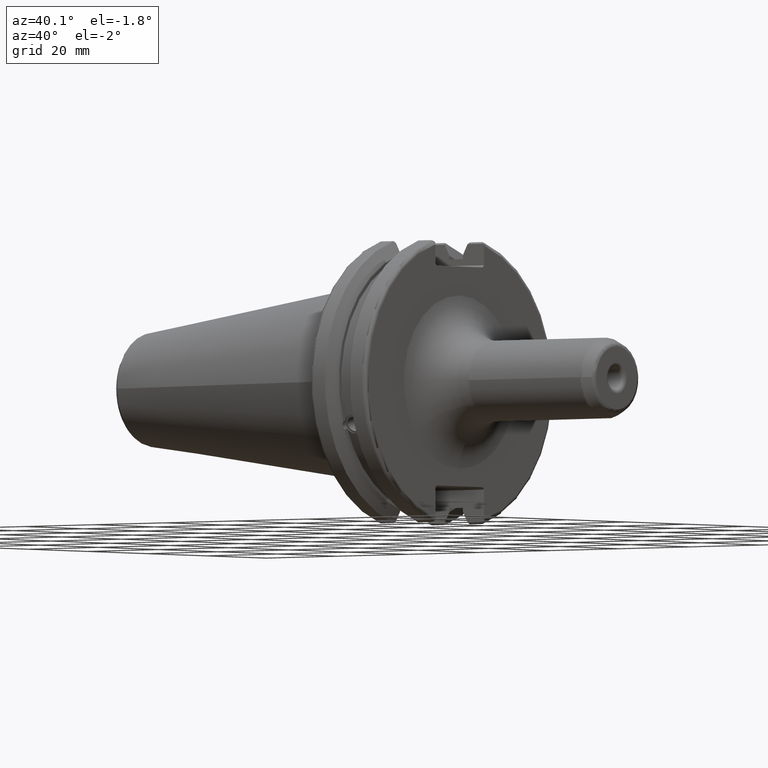
[diagram: clean part render]
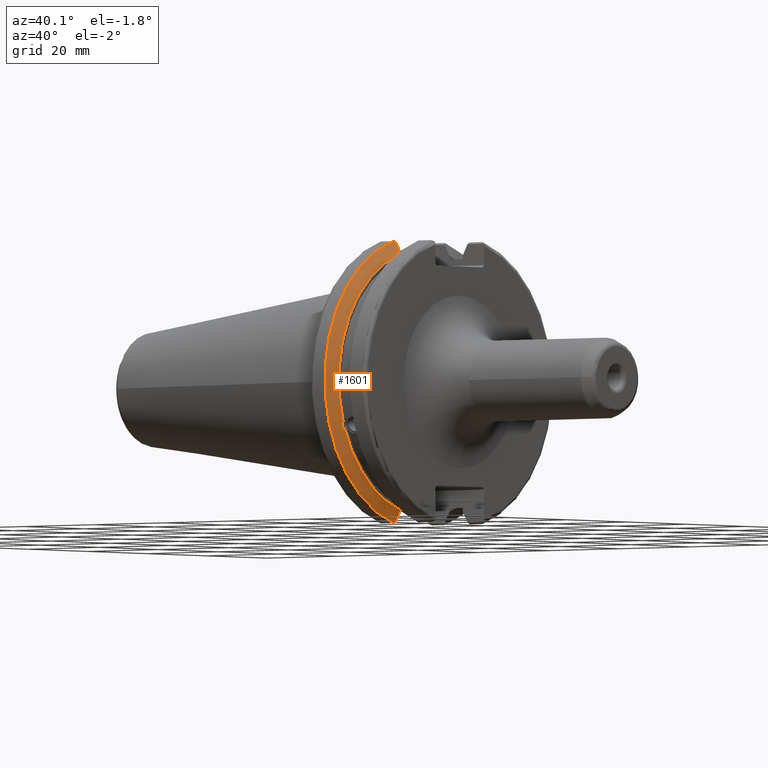
[diagram: same view with one face highlighted and labeled with its STEP entity id]
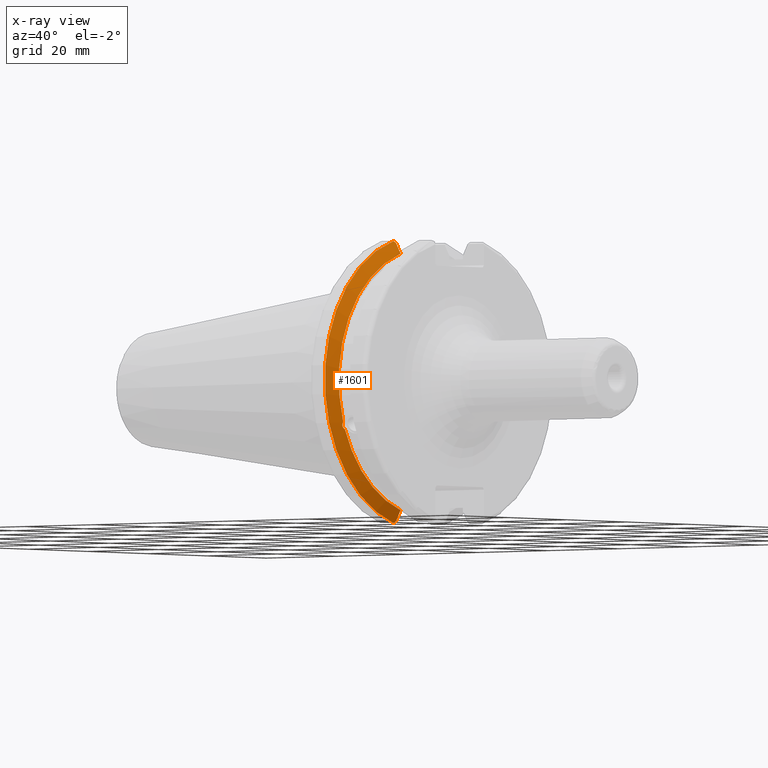
[diagram: x-ray of the same camera — body ghosted, the highlighted face saturated]
A machine part, auxiliary view. The second image highlights one B-rep face of the part: STEP entity #1601.
The next image is the same camera in x-ray: the body ghosted, the highlighted face saturated — about 0% of this face is hidden behind the body in this view.
In plain terms, the highlighted conical surface has half-angle 60 deg.
Its self-contained STEP definition (entity closure, byte-faithful):
#25=(
BOUNDED_CURVE()
B_SPLINE_CURVE(2,(#2958,#2959,#2960),.UNSPECIFIED.,.F.,.F.)
B_SPLINE_CURVE_WITH_KNOTS((3,3),(0.,0.276549142796136),.UNSPECIFIED.)
CURVE()
GEOMETRIC_REPRESENTATION_ITEM()
RATIONAL_B_SPLINE_CURVE((1.,1.00095203903316,1.00031614444813))
REPRESENTATION_ITEM('')
);
#26=(
BOUNDED_CURVE()
B_SPLINE_CURVE(2,(#2970,#2971,#2972),.UNSPECIFIED.,.F.,.F.)
B_SPLINE_CURVE_WITH_KNOTS((3,3),(0.0550586467392022,0.33160778953585),
 .UNSPECIFIED.)
CURVE()
GEOMETRIC_REPRESENTATION_ITEM()
RATIONAL_B_SPLINE_CURVE((1.00031614445148,1.00095203904325,1.))
REPRESENTATION_ITEM('')
);
#27=(
BOUNDED_CURVE()
B_SPLINE_CURVE(2,(#3005,#3006,#3007),.UNSPECIFIED.,.F.,.F.)
B_SPLINE_CURVE_WITH_KNOTS((3,3),(0.,0.0639048713676282),.UNSPECIFIED.)
CURVE()
GEOMETRIC_REPRESENTATION_ITEM()
RATIONAL_B_SPLINE_CURVE((1.,1.00028444218284,1.00047644010574))
REPRESENTATION_ITEM('')
);
#28=(
BOUNDED_CURVE()
B_SPLINE_CURVE(2,(#3013,#3014,#3015),.UNSPECIFIED.,.F.,.F.)
B_SPLINE_CURVE_WITH_KNOTS((3,3),(0.329353533631205,0.393258405001025),
 .UNSPECIFIED.)
CURVE()
GEOMETRIC_REPRESENTATION_ITEM()
RATIONAL_B_SPLINE_CURVE((1.00047644010572,1.00028444218283,1.))
REPRESENTATION_ITEM('')
);
#62=CONICAL_SURFACE('',#1805,30.3546886482472,1.0471975511966);
#73=B_SPLINE_CURVE_WITH_KNOTS('',3,(#2577,#2578,#2579,#2580,#2581,#2582,
#2583,#2584,#2585,#2586,#2587,#2588,#2589,#2590),.UNSPECIFIED.,.F.,.F.,
(4,2,2,2,2,2,4),(0.451995700189024,0.464547828547662,0.504528771685167,
0.544509714822672,0.584490657960178,0.624471601097683,0.63702372945632),
 .UNSPECIFIED.);
#449=FACE_OUTER_BOUND('',#552,.T.);
#552=EDGE_LOOP('',(#1494,#1495,#1496,#1497,#1498,#1499,#1500,#1501));
#590=CIRCLE('',#1699,28.9593772964944);
#612=CIRCLE('',#1755,31.75);
#630=CIRCLE('',#1806,28.9593772964944);
#683=VERTEX_POINT('',#2574);
#684=VERTEX_POINT('',#2576);
#701=VERTEX_POINT('',#2668);
#761=VERTEX_POINT('',#2955);
#762=VERTEX_POINT('',#2957);
#765=VERTEX_POINT('',#2969);
#769=VERTEX_POINT('',#3003);
#770=VERTEX_POINT('',#3009);
#859=EDGE_CURVE('',#684,#683,#73,.T.);
#883=EDGE_CURVE('',#684,#701,#590,.T.);
#966=EDGE_CURVE('',#762,#761,#25,.T.);
#972=EDGE_CURVE('',#765,#701,#26,.T.);
#980=EDGE_CURVE('',#769,#761,#27,.T.);
#982=EDGE_CURVE('',#769,#770,#612,.T.);
#983=EDGE_CURVE('',#765,#770,#28,.T.);
#1027=EDGE_CURVE('',#762,#683,#630,.T.);
#1494=ORIENTED_EDGE('',*,*,#859,.T.);
#1495=ORIENTED_EDGE('',*,*,#1027,.F.);
#1496=ORIENTED_EDGE('',*,*,#966,.T.);
#1497=ORIENTED_EDGE('',*,*,#980,.F.);
#1498=ORIENTED_EDGE('',*,*,#982,.T.);
#1499=ORIENTED_EDGE('',*,*,#983,.F.);
#1500=ORIENTED_EDGE('',*,*,#972,.T.);
#1501=ORIENTED_EDGE('',*,*,#883,.F.);
#1601=ADVANCED_FACE('',(#449),#62,.T.);
#1699=AXIS2_PLACEMENT_3D('',#2669,#1988,#1989);
#1755=AXIS2_PLACEMENT_3D('',#3011,#2141,#2142);
#1805=AXIS2_PLACEMENT_3D('',#3131,#2262,#2263);
#1806=AXIS2_PLACEMENT_3D('',#3132,#2264,#2265);
#1988=DIRECTION('center_axis',(1.,0.,0.));
#1989=DIRECTION('ref_axis',(0.,0.,-1.));
#2141=DIRECTION('center_axis',(1.,0.,0.));
#2142=DIRECTION('ref_axis',(0.,0.,-1.));
#2262=DIRECTION('center_axis',(-1.,0.,0.));
#2263=DIRECTION('ref_axis',(0.,-1.,-1.22464679914735E-16));
#2264=DIRECTION('center_axis',(1.,0.,0.));
#2265=DIRECTION('ref_axis',(0.,0.,-1.));
#2574=CARTESIAN_POINT('',(9.2191,-27.4956274489925,-9.09043478536245));
#2576=CARTESIAN_POINT('',(9.2191,-26.9060914640648,-10.7101715919071));
#2577=CARTESIAN_POINT('Ctrl Pts',(9.2191,-26.9060914640648,-10.7101715919071));
#2578=CARTESIAN_POINT('Ctrl Pts',(9.20497959280038,-26.9406927482839,-10.6893765730703));
#2579=CARTESIAN_POINT('Ctrl Pts',(9.19150701821434,-26.9744191989197,-10.6676007180673));
#2580=CARTESIAN_POINT('Ctrl Pts',(9.13811855884095,-27.1113422433189,-10.5723885976054));
#2581=CARTESIAN_POINT('Ctrl Pts',(9.09998029158246,-27.2180531796526,-10.4801333026531));
#2582=CARTESIAN_POINT('Ctrl Pts',(9.04778935539424,-27.3968610665578,-10.2639559818059));
#2583=CARTESIAN_POINT('Ctrl Pts',(9.0341,-27.4684373304961,-10.139516340139));
#2584=CARTESIAN_POINT('Ctrl Pts',(9.0341,-27.559599249844,-9.8890510252165));
#2585=CARTESIAN_POINT('Ctrl Pts',(9.04778935539424,-27.5847569104122,-9.74771639360671));
#2586=CARTESIAN_POINT('Ctrl Pts',(9.09998029158246,-27.5867382255984,-9.46717946402648));
#2587=CARTESIAN_POINT('Ctrl Pts',(9.13811855884095,-27.5642934663232,-9.32791534028656));
#2588=CARTESIAN_POINT('Ctrl Pts',(9.19150701821434,-27.5206055003512,-9.16696618806877));
#2589=CARTESIAN_POINT('Ctrl Pts',(9.20497959280038,-27.5087667900418,-9.12860597076218));
#2590=CARTESIAN_POINT('Ctrl Pts',(9.2191,-27.4956274489925,-9.09043478536245));
#2668=CARTESIAN_POINT('',(9.2191,-8.19,-27.7771386827498));
#2669=CARTESIAN_POINT('Origin',(9.2191,0.,0.));
#2955=CARTESIAN_POINT('',(7.88668530351257,-8.19,30.1755016258903));
#2957=CARTESIAN_POINT('',(9.2191,-8.19,27.7771386827498));
#2958=CARTESIAN_POINT('Ctrl Pts',(9.2191,-8.19,27.7771386827498));
#2959=CARTESIAN_POINT('Ctrl Pts',(8.58046356152393,-8.19,28.9303689539705));
#2960=CARTESIAN_POINT('Ctrl Pts',(7.88668530351257,-8.19,30.1755016258903));
#2969=CARTESIAN_POINT('',(7.88668530351256,-8.19,-30.1755016258903));
#2970=CARTESIAN_POINT('Ctrl Pts',(7.88668530351256,-8.19,-30.1755016258903));
#2971=CARTESIAN_POINT('Ctrl Pts',(8.5804635615235,-8.19,-28.9303689539712));
#2972=CARTESIAN_POINT('Ctrl Pts',(9.2191,-8.19,-27.7771386827498));
#3003=CARTESIAN_POINT('',(7.60793323092436,-8.67204822802685,30.5427254764662));
#3005=CARTESIAN_POINT('Ctrl Pts',(7.60793323092436,-8.67204822802686,30.5427254764662));
#3006=CARTESIAN_POINT('Ctrl Pts',(7.74899148121626,-8.42917748262648,30.357706789263));
#3007=CARTESIAN_POINT('Ctrl Pts',(7.88668530351257,-8.19,30.1755016258903));
#3009=CARTESIAN_POINT('',(7.60793323092436,-8.67204822802685,-30.5427254764662));
#3011=CARTESIAN_POINT('Origin',(7.60793323092436,0.,0.));
#3013=CARTESIAN_POINT('Ctrl Pts',(7.88668530351256,-8.19,-30.1755016258903));
#3014=CARTESIAN_POINT('Ctrl Pts',(7.74899148121159,-8.42917748263467,-30.3577067892692));
#3015=CARTESIAN_POINT('Ctrl Pts',(7.60793323092435,-8.67204822802687,-30.5427254764662));
#3131=CARTESIAN_POINT('Origin',(8.41351661546218,0.,0.));
#3132=CARTESIAN_POINT('Origin',(9.2191,0.,0.));